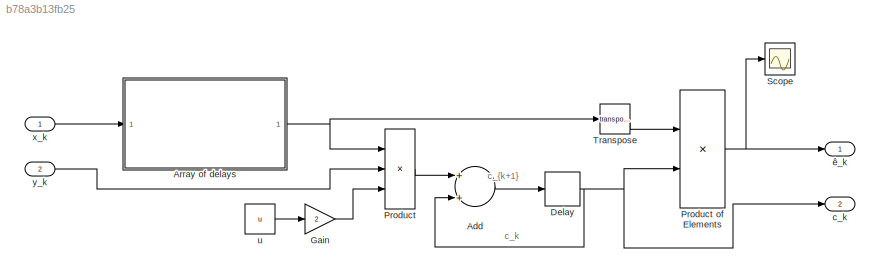
MODEL slx_b78a3b13fb25
KIND model
BLOCK [Sum] Add
  InputSameDT = off
  OutDataTypeStr = Inherit: Inherit via internal rule
  Ports = [2, 1]
  SaturateOnIntegerOverflow = off
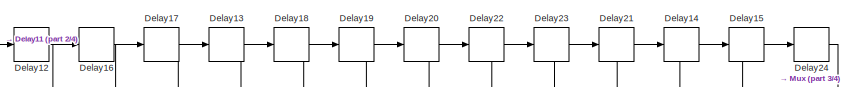
[diagram: Array of delays - part 1/4, top right region]
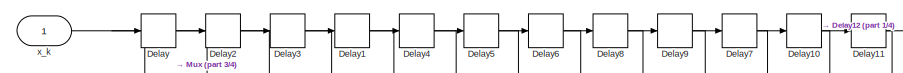
[diagram: Array of delays - part 2/4, top left region]
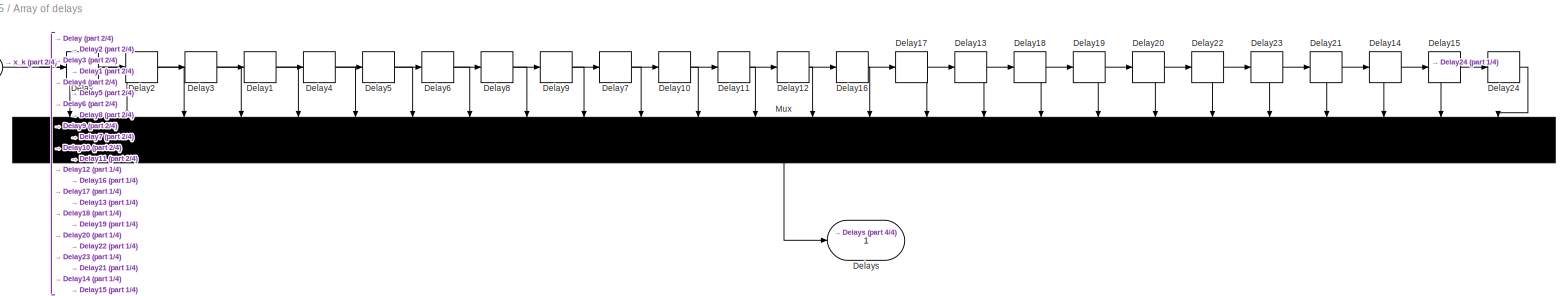
[diagram: Array of delays - part 3/4, most of the canvas]
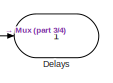
[diagram: Array of delays - part 4/4, bottom center region]
BLOCK [SubSystem] Array of delays
  FunctionWithSeparateData = off
  MaskHideContents = off
  MinAlgLoopOccurrences = off
  Opaque = off
  Ports = [1, 1]
  PropExecContextOutsideSubsystem = off
  RTWSystemCode = Auto
  RequestExecContextInheritance = off
BLOCK [Delay] Array of delays/Delay
  DelayLength = 1
  InputPortMap = u0
  Ports = [1, 1]
  SampleTime = T
BLOCK [Delay] Array of delays/Delay1
  DelayLength = 1
  InputPortMap = u0
  Ports = [1, 1]
BLOCK [Delay] Array of delays/Delay10
  DelayLength = 1
  InputPortMap = u0
  Ports = [1, 1]
BLOCK [Delay] Array of delays/Delay11
  DelayLength = 1
  InputPortMap = u0
  Ports = [1, 1]
BLOCK [Delay] Array of delays/Delay12
  DelayLength = 1
  InputPortMap = u0
  Ports = [1, 1]
BLOCK [Delay] Array of delays/Delay13
  DelayLength = 1
  InputPortMap = u0
  Ports = [1, 1]
BLOCK [Delay] Array of delays/Delay14
  DelayLength = 1
  InputPortMap = u0
  Ports = [1, 1]
BLOCK [Delay] Array of delays/Delay15
  DelayLength = 1
  InputPortMap = u0
  Ports = [1, 1]
BLOCK [Delay] Array of delays/Delay16
  DelayLength = 1
  InputPortMap = u0
  Ports = [1, 1]
BLOCK [Delay] Array of delays/Delay17
  DelayLength = 1
  InputPortMap = u0
  Ports = [1, 1]
BLOCK [Delay] Array of delays/Delay18
  DelayLength = 1
  InputPortMap = u0
  Ports = [1, 1]
BLOCK [Delay] Array of delays/Delay19
  DelayLength = 1
  InputPortMap = u0
  Ports = [1, 1]
BLOCK [Delay] Array of delays/Delay2
  DelayLength = 1
  InputPortMap = u0
  Ports = [1, 1]
BLOCK [Delay] Array of delays/Delay20
  DelayLength = 1
  InputPortMap = u0
  Ports = [1, 1]
BLOCK [Delay] Array of delays/Delay21
  DelayLength = 1
  InputPortMap = u0
  Ports = [1, 1]
BLOCK [Delay] Array of delays/Delay22
  DelayLength = 1
  InputPortMap = u0
  Ports = [1, 1]
BLOCK [Delay] Array of delays/Delay23
  DelayLength = 1
  InputPortMap = u0
  Ports = [1, 1]
BLOCK [Delay] Array of delays/Delay24
  DelayLength = 1
  InputPortMap = u0
  Ports = [1, 1]
BLOCK [Delay] Array of delays/Delay3
  DelayLength = 1
  InputPortMap = u0
  Ports = [1, 1]
BLOCK [Delay] Array of delays/Delay4
  DelayLength = 1
  InputPortMap = u0
  Ports = [1, 1]
BLOCK [Delay] Array of delays/Delay5
  DelayLength = 1
  InputPortMap = u0
  Ports = [1, 1]
BLOCK [Delay] Array of delays/Delay6
  DelayLength = 1
  InputPortMap = u0
  Ports = [1, 1]
BLOCK [Delay] Array of delays/Delay7
  DelayLength = 1
  InputPortMap = u0
  Ports = [1, 1]
BLOCK [Delay] Array of delays/Delay8
  DelayLength = 1
  InputPortMap = u0
  Ports = [1, 1]
BLOCK [Delay] Array of delays/Delay9
  DelayLength = 1
  InputPortMap = u0
  Ports = [1, 1]
BLOCK [Outport] Array of delays/Delays
  IconDisplay = Port number
BLOCK [Mux] Array of delays/Mux
  DisplayOption = signals
  Inputs = 26
  Ports = [26, 1]
BLOCK [Inport] Array of delays/x_k
  IconDisplay = Port number
BLOCK [Delay] Delay
  DelayLength = 1
  InputPortMap = u0
  Ports = [1, 1]
  SampleTime = T
BLOCK [Gain] Gain
  Gain = 2
  OutDataTypeStr = Inherit: Inherit via internal rule
  ParamDataTypeStr = Inherit: Inherit via internal rule
  SaturateOnIntegerOverflow = off
BLOCK [Product] Product
  InputSameDT = off
  Inputs = 3
  Multiplication = Matrix(*)
  OutDataTypeStr = Inherit: Inherit via internal rule
  Ports = [3, 1]
  RndMeth = Floor
  SaturateOnIntegerOverflow = off
BLOCK [Product] Product of Elements
  InputSameDT = off
  Inputs = **
  Multiplication = Matrix(*)
  OutDataTypeStr = Inherit: Inherit via internal rule
  Ports = [2, 1]
  RndMeth = Floor
  SaturateOnIntegerOverflow = off
BLOCK [Scope] Scope
  Floating = off
  NumInputPorts = 1
  Ports = [1]
  ShowLegends = off
BLOCK [Math] Transpose
  Operator = transpose
  Ports = [1, 1]
BLOCK [Outport] c_k
  IconDisplay = Port number
  Port = 2
BLOCK [Constant] u
  SampleTime = T
  Value = u
BLOCK [Inport] x_k
  IconDisplay = Port number
BLOCK [Inport] y_k
  IconDisplay = Port number
  Port = 2
BLOCK [Outport] ê_k
  IconDisplay = Port number
ANNOTATION (root): c_k
ANNOTATION (root): c_{k+1}
LINE Add:1 -> Delay:1
NET Array of delays/Delay10:1 -> Array of delays/Delay11:1, Array of delays/Mux:12
NET Array of delays/Delay11:1 -> Array of delays/Delay12:1, Array of delays/Mux:13
NET Array of delays/Delay12:1 -> Array of delays/Delay16:1, Array of delays/Mux:14
NET Array of delays/Delay13:1 -> Array of delays/Delay18:1, Array of delays/Mux:17
NET Array of delays/Delay14:1 -> Array of delays/Delay15:1, Array of delays/Mux:24
NET Array of delays/Delay15:1 -> Array of delays/Delay24:1, Array of delays/Mux:25
NET Array of delays/Delay16:1 -> Array of delays/Delay17:1, Array of delays/Mux:15
NET Array of delays/Delay17:1 -> Array of delays/Delay13:1, Array of delays/Mux:16
NET Array of delays/Delay18:1 -> Array of delays/Delay19:1, Array of delays/Mux:18
NET Array of delays/Delay19:1 -> Array of delays/Delay20:1, Array of delays/Mux:19
NET Array of delays/Delay1:1 -> Array of delays/Delay4:1, Array of delays/Mux:5
NET Array of delays/Delay20:1 -> Array of delays/Delay22:1, Array of delays/Mux:20
NET Array of delays/Delay21:1 -> Array of delays/Delay14:1, Array of delays/Mux:23
NET Array of delays/Delay22:1 -> Array of delays/Delay23:1, Array of delays/Mux:21
NET Array of delays/Delay23:1 -> Array of delays/Delay21:1, Array of delays/Mux:22
LINE Array of delays/Delay24:1 -> Array of delays/Mux:26
NET Array of delays/Delay2:1 -> Array of delays/Delay3:1, Array of delays/Mux:3
NET Array of delays/Delay3:1 -> Array of delays/Delay1:1, Array of delays/Mux:4
NET Array of delays/Delay4:1 -> Array of delays/Delay5:1, Array of delays/Mux:6
NET Array of delays/Delay5:1 -> Array of delays/Delay6:1, Array of delays/Mux:7
NET Array of delays/Delay6:1 -> Array of delays/Delay8:1, Array of delays/Mux:8
NET Array of delays/Delay7:1 -> Array of delays/Delay10:1, Array of delays/Mux:11
NET Array of delays/Delay8:1 -> Array of delays/Delay9:1, Array of delays/Mux:9
NET Array of delays/Delay9:1 -> Array of delays/Delay7:1, Array of delays/Mux:10
NET Array of delays/Delay:1 -> Array of delays/Delay2:1, Array of delays/Mux:2
LINE Array of delays/Mux:1 -> Array of delays/Delays:1
NET Array of delays/x_k:1 -> Array of delays/Delay:1, Array of delays/Mux:1
NET Array of delays:1 -> Product:1, Transpose:1
NET Delay:1 -> Add:2, Product of Elements:2, c_k:1
LINE Gain:1 -> Product:3
NET Product of Elements:1 -> Scope:1, ê_k:1
LINE Product:1 -> Add:1
LINE Transpose:1 -> Product of Elements:1
LINE u:1 -> Gain:1
LINE x_k:1 -> Array of delays:1
LINE y_k:1 -> Product:2
note: NET lines group one-source signal fan-out (src -> all destinations, sorted); 1:1 wires keep LINE
